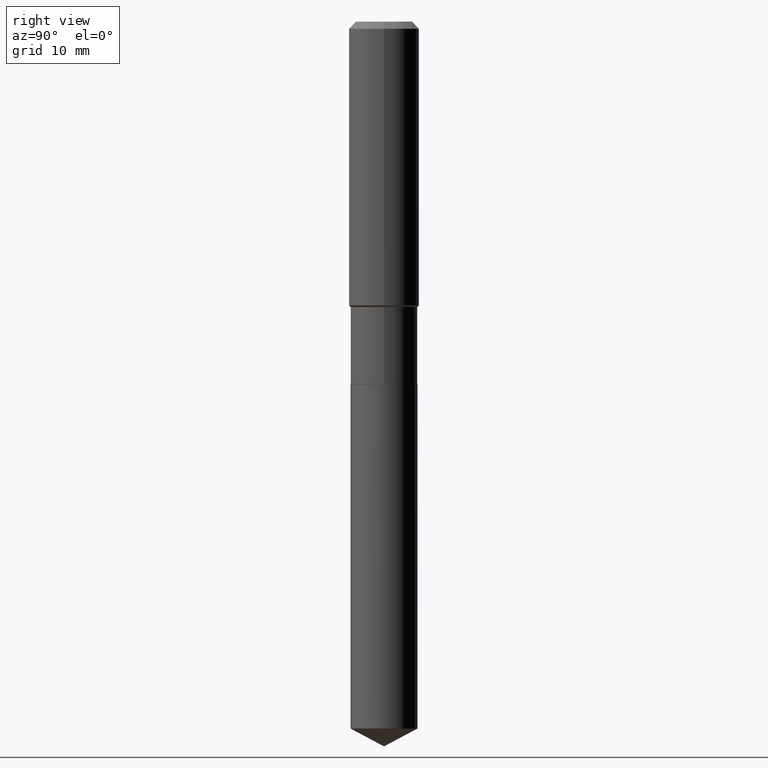
[diagram: clean part render]
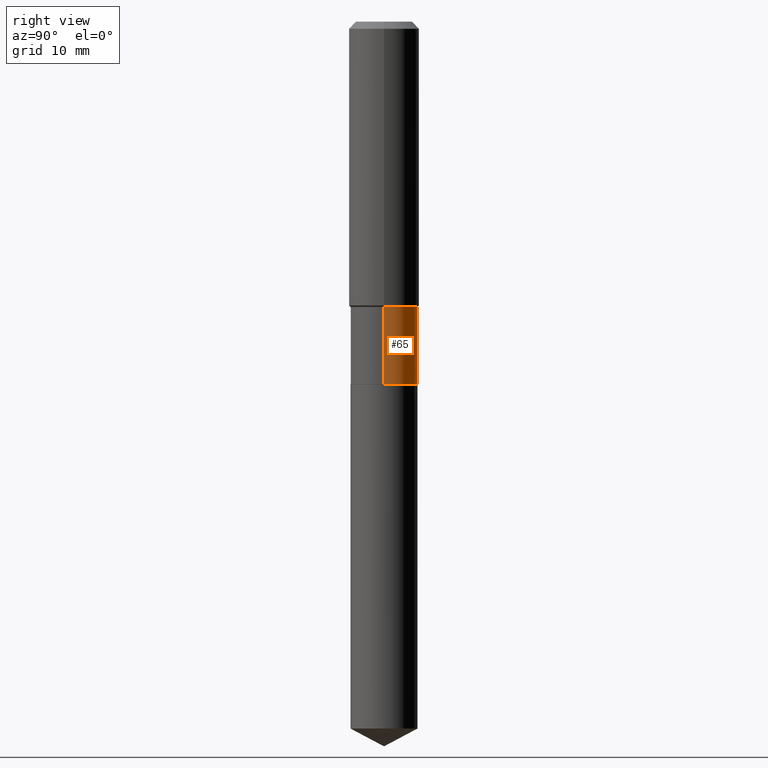
[diagram: same view with one face highlighted and labeled with its STEP entity id]
A machine part, right view. The second image highlights one B-rep face of the part: STEP entity #65.
In plain terms, the highlighted cylindrical surface (edge-blend (fillet) strip) has radius 4.7625 mm, axis along (-0, 0, 1).
Its self-contained STEP definition (entity closure, byte-faithful):
#5 = ORIENTED_EDGE ( 'NONE', *, *, #137, .F. ) ;
#7 = VERTEX_POINT ( 'NONE', #287 ) ;
#14 = VERTEX_POINT ( 'NONE', #444 ) ;
#28 = CARTESIAN_POINT ( 'NONE',  ( 4.958188004540363822E-29, -7.078978414504476228E-15, -2.027499999999999414 ) ) ;
#47 = DIRECTION ( 'NONE',  ( 1.000000000000000000, -6.982962677686264344E-15, 0.000000000000000000 ) ) ;
#63 = ORIENTED_EDGE ( 'NONE', *, *, #259, .T. ) ;
#65 = ADVANCED_FACE ( 'NONE', ( #483 ), #485, .T. ) ;
#84 = AXIS2_PLACEMENT_3D ( 'NONE', #284, #142, #202 ) ;
#137 = EDGE_CURVE ( 'NONE', #14, #261, #476, .T. ) ;
#142 = DIRECTION ( 'NONE',  ( -2.445468806185136597E-29, 3.491481338843145583E-15, 1.000000000000000000 ) ) ;
#147 = DIRECTION ( 'NONE',  ( -2.445468806185136877E-29, 3.491481338843145188E-15, 1.000000000000000000 ) ) ;
#163 = AXIS2_PLACEMENT_3D ( 'NONE', #28, #240, #323 ) ;
#165 = VERTEX_POINT ( 'NONE', #454 ) ;
#174 = CIRCLE ( 'NONE', #163, 0.1875000000000000278 ) ;
#187 = VECTOR ( 'NONE', #338, 39.37007874015748143 ) ;
#202 = DIRECTION ( 'NONE',  ( 1.000000000000000000, -6.982962677686266711E-15, 4.876176775795935793E-29 ) ) ;
#222 = CARTESIAN_POINT ( 'NONE',  ( 0.1874999999999999722, -1.309305502066174811E-15, 9.142831454617378210E-30 ) ) ;
#228 = EDGE_LOOP ( 'NONE', ( #300, #63, #377, #5 ) ) ;
#240 = DIRECTION ( 'NONE',  ( -2.445468806185136597E-29, 3.491481338843145583E-15, 1.000000000000000000 ) ) ;
#254 = EDGE_CURVE ( 'NONE', #261, #7, #384, .T. ) ;
#259 = EDGE_CURVE ( 'NONE', #165, #7, #381, .T. ) ;
#261 = VERTEX_POINT ( 'NONE', #263 ) ;
#263 = CARTESIAN_POINT ( 'NONE',  ( 0.1874999999999999445, -6.884153755797024597E-15, -1.596700000000000008 ) ) ;
#284 = CARTESIAN_POINT ( 'NONE',  ( 0.000000000000000000, 0.000000000000000000, 0.000000000000000000 ) ) ;
#287 = CARTESIAN_POINT ( 'NONE',  ( -0.1874999999999999445, -4.994645704567475454E-15, -1.596700000000000008 ) ) ;
#300 = ORIENTED_EDGE ( 'NONE', *, *, #336, .T. ) ;
#308 = CARTESIAN_POINT ( 'NONE',  ( -0.1874999999999999722, 1.332267629550187651E-15, -9.223003294227946589E-30 ) ) ;
#323 = DIRECTION ( 'NONE',  ( 1.000000000000000000, -6.982962677686266711E-15, 0.000000000000000000 ) ) ;
#336 = EDGE_CURVE ( 'NONE', #14, #165, #174, .T. ) ;
#338 = DIRECTION ( 'NONE',  ( -2.445468806185136877E-29, 3.491481338843145188E-15, 1.000000000000000000 ) ) ;
#340 = CARTESIAN_POINT ( 'NONE',  ( 3.904680042835807186E-29, -5.574848253730850378E-15, -1.596700000000000008 ) ) ;
#352 = AXIS2_PLACEMENT_3D ( 'NONE', #340, #419, #47 ) ;
#377 = ORIENTED_EDGE ( 'NONE', *, *, #254, .F. ) ;
#381 = LINE ( 'NONE', #308, #187 ) ;
#384 = CIRCLE ( 'NONE', #352, 0.1874999999999999445 ) ;
#389 = VECTOR ( 'NONE', #147, 39.37007874015748143 ) ;
#419 = DIRECTION ( 'NONE',  ( -2.445468806185136597E-29, 3.491481338843145583E-15, 1.000000000000000000 ) ) ;
#444 = CARTESIAN_POINT ( 'NONE',  ( 0.1875000000000000278, -8.388283916570652025E-15, -2.027499999999999414 ) ) ;
#454 = CARTESIAN_POINT ( 'NONE',  ( -0.1875000000000000278, -4.994645704567475454E-15, -2.027499999999999414 ) ) ;
#476 = LINE ( 'NONE', #222, #389 ) ;
#483 = FACE_OUTER_BOUND ( 'NONE', #228, .T. ) ;
#485 = CYLINDRICAL_SURFACE ( 'NONE', #84, 0.1874999999999999722 ) ;